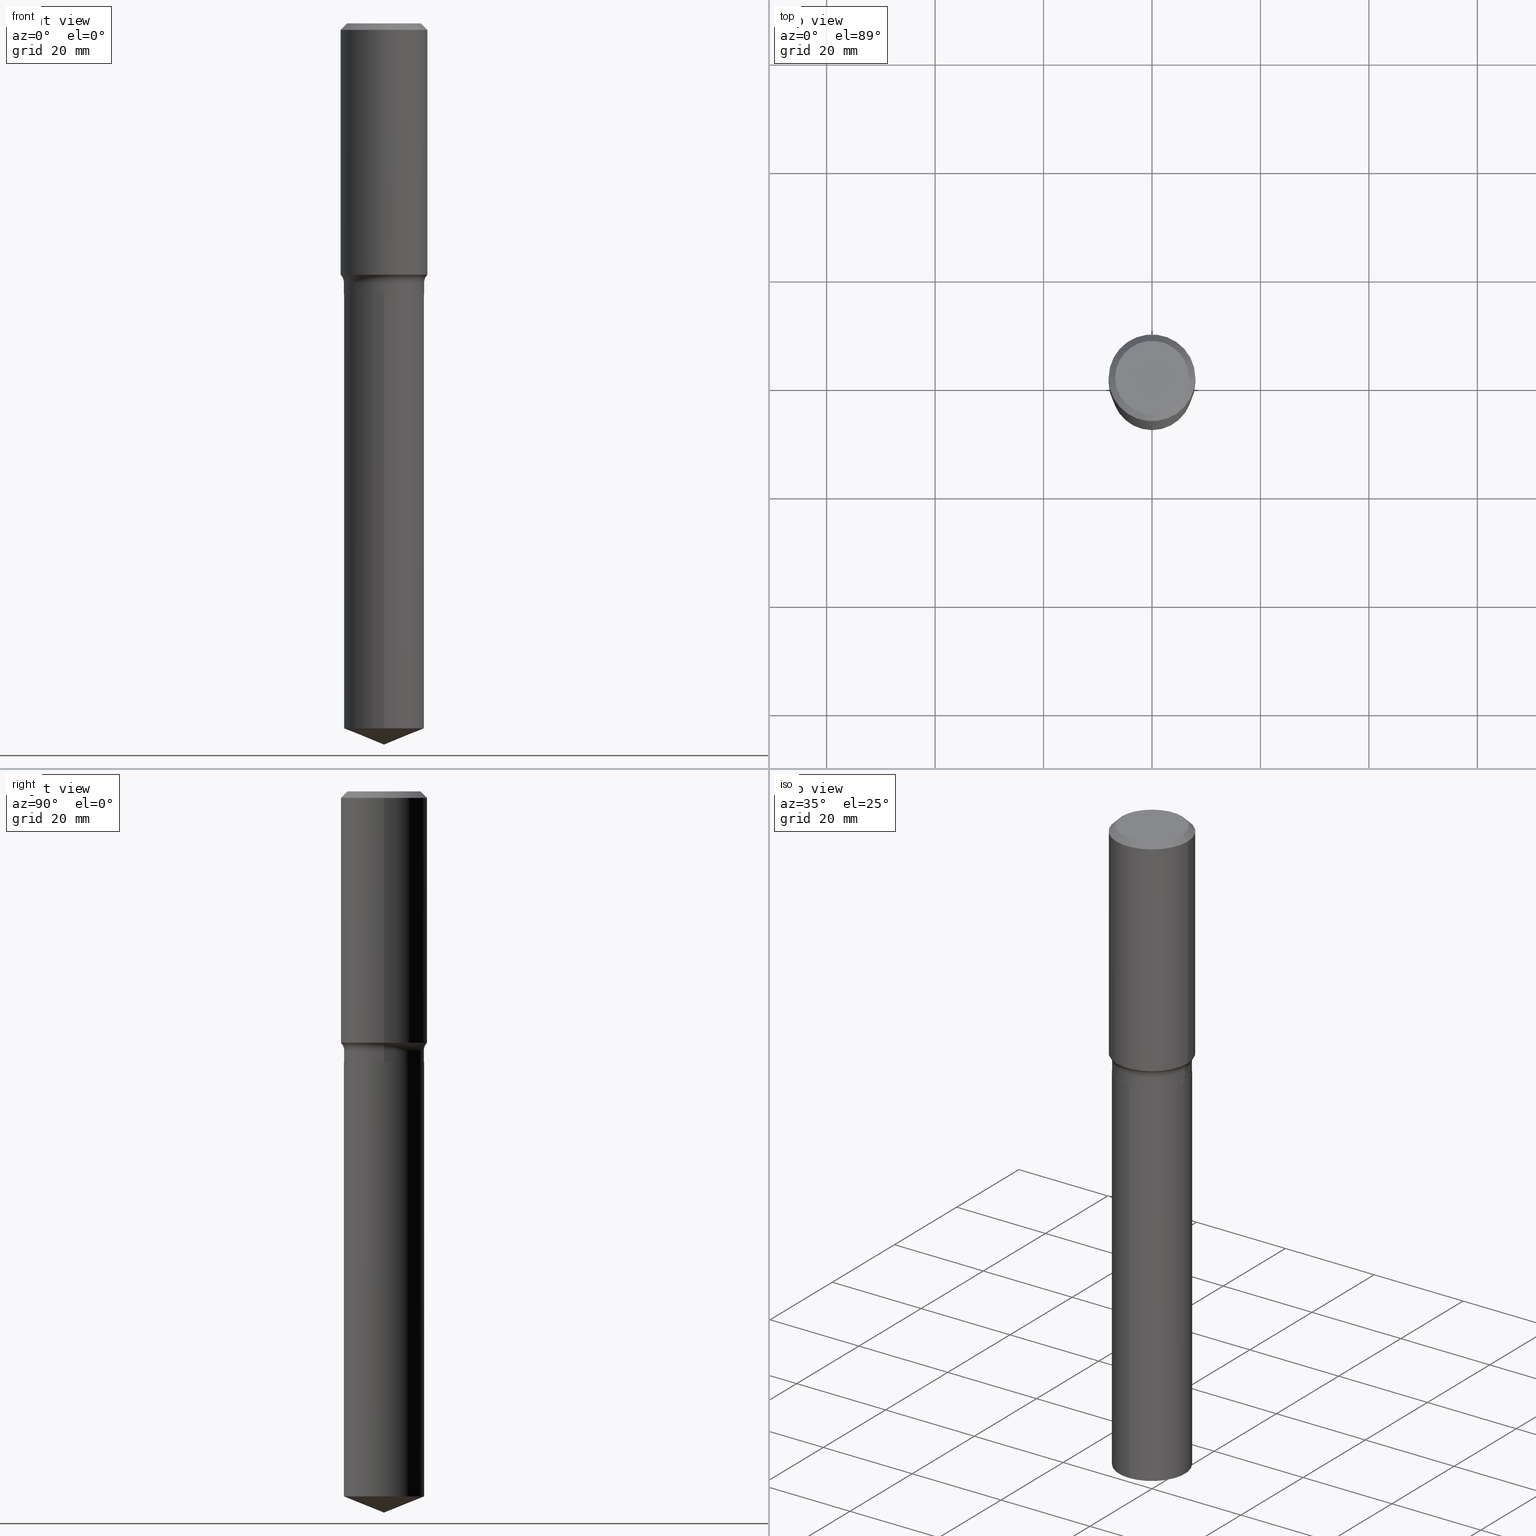
[diagram: canonical four-view strip — front | top / right | iso, engineering-drawing reading convention]
A machine part, canonical four-view strip (front | top / right | iso — engineering-drawing reading convention). The complete STEP part file that produces these views, byte-faithful:
ISO-10303-21;
HEADER;
FILE_DESCRIPTION (( 'STEP AP203' ),
    '1' );
FILE_NAME ('69321.STEP',
    '2024-04-19T17:50:27',
    ( '' ),
    ( '' ),
    'SwSTEP 2.0',
    'SolidWorks 2023',
    '' );
FILE_SCHEMA (( 'CONFIG_CONTROL_DESIGN' ));
ENDSEC;

DATA;
#1 = TOROIDAL_SURFACE ( 'NONE', #73, 0.3693499999999999006, 0.07799999999999995826 ) ;
#2 = CALENDAR_DATE ( 2024, 19, 4 ) ;
#3 = CYLINDRICAL_SURFACE ( 'NONE', #227, 0.2913499999999999979 ) ;
#4 = EDGE_LOOP ( 'NONE', ( #96, #465, #317 ) ) ;
#5 = DIRECTION ( 'NONE',  ( 1.000000000000000000, -6.982962677686267499E-15, 0.000000000000000000 ) ) ;
#6 = CC_DESIGN_PERSON_AND_ORGANIZATION_ASSIGNMENT ( #38, #190, ( #103 ) ) ;
#7 = CARTESIAN_POINT ( 'NONE',  ( 4.813416251214202584E-29, -6.872282719244960739E-15, -1.968299999999999272 ) ) ;
#8 = DESIGN_CONTEXT ( 'detailed design', #474, 'design' ) ;
#9 = DIRECTION ( 'NONE',  ( 1.000000000000000000, -6.982962677686267499E-15, 0.000000000000000000 ) ) ;
#10 = CARTESIAN_POINT ( 'NONE',  ( 2.070166260637176911E-15, 0.2913499999999821788, -5.118286959102927192 ) ) ;
#11 = AXIS2_PLACEMENT_3D ( 'NONE', #36, #184, #350 ) ;
#12 = PRODUCT_DEFINITION ( 'UNKNOWN', '', #103, #8 ) ;
#13 = DIRECTION ( 'NONE',  ( 1.000000000000000000, -6.982962677686266711E-15, 0.000000000000000000 ) ) ;
#14 = ORIENTED_EDGE ( 'NONE', *, *, #24, .T. ) ;
#15 = CALENDAR_DATE ( 2024, 19, 4 ) ;
#16 = FACE_OUTER_BOUND ( 'NONE', #199, .T. ) ;
#17 = ORIENTED_EDGE ( 'NONE', *, *, #173, .F. ) ;
#18 = AXIS2_PLACEMENT_3D ( 'NONE', #274, #438, #236 ) ;
#19 = ADVANCED_FACE ( 'NONE', ( #276 ), #59, .T. ) ;
#20 = DIRECTION ( 'NONE',  ( -2.445468806185136877E-29, 3.491481338843145188E-15, 1.000000000000000000 ) ) ;
#21 = EDGE_LOOP ( 'NONE', ( #235, #372, #207, #237 ) ) ;
#22 = DIRECTION ( 'NONE',  ( -6.982962677686267499E-15, -1.000000000000000000, 3.750606478344620614E-15 ) ) ;
#23 = AXIS2_PLACEMENT_3D ( 'NONE', #472, #362, #9 ) ;
#24 = EDGE_CURVE ( 'NONE', #439, #170, #482, .T. ) ;
#25 = APPROVAL_DATE_TIME ( #408, #128 ) ;
#26 = CARTESIAN_POINT ( 'NONE',  ( 0.000000000000000000, 0.000000000000000000, 0.000000000000000000 ) ) ;
#27 = SHAPE_DEFINITION_REPRESENTATION ( #436, #307 ) ;
#28 = DIRECTION ( 'NONE',  ( 1.000000000000000000, -6.982962677686265922E-15, 4.876176775795935232E-29 ) ) ;
#29 = CARTESIAN_POINT ( 'NONE',  ( -2.034486176143845503E-15, -0.2913500000000068257, -1.968299999999998162 ) ) ;
#30 = ADVANCED_FACE ( 'NONE', ( #449 ), #132, .F. ) ;
#31 = ORIENTED_EDGE ( 'NONE', *, *, #452, .T. ) ;
#32 = DATE_AND_TIME ( #2, #42 ) ;
#33 = CARTESIAN_POINT ( 'NONE',  ( 4.462250649209089674E-29, -6.370911308109631096E-15, -1.824701520593131843 ) ) ;
#34 = DIRECTION ( 'NONE',  ( -0.7071067811865453523, 2.468850131082234184E-15, -0.7071067811865496822 ) ) ;
#35 = DIRECTION ( 'NONE',  ( 1.000000000000000000, -6.982962677686266711E-15, 0.000000000000000000 ) ) ;
#36 = CARTESIAN_POINT ( 'NONE',  ( -1.001697619218022568E-46, 1.430158722866391086E-32, 4.096137381448112218E-18 ) ) ;
#37 = ADVANCED_FACE ( 'NONE', ( #16 ), #392, .T. ) ;
#38 = PERSON_AND_ORGANIZATION ( #321, #114 ) ;
#39 = AXIS2_PLACEMENT_3D ( 'NONE', #45, #195, #363 ) ;
#40 = CIRCLE ( 'NONE', #345, 0.3149500000000000077 ) ;
#41 = DIRECTION ( 'NONE',  ( -2.438088387897960049E-29, 3.491481338843145188E-15, 1.000000000000000000 ) ) ;
#42 = LOCAL_TIME ( 13, 50, 27.00000000000000000, #343 ) ;
#43 = FACE_OUTER_BOUND ( 'NONE', #158, .T. ) ;
#44 = ORIENTED_EDGE ( 'NONE', *, *, #414, .F. ) ;
#45 = CARTESIAN_POINT ( 'NONE',  ( -5.008488096090112840E-47, 7.150793614331955432E-33, 2.048068690724056109E-18 ) ) ;
#46 = LINE ( 'NONE', #196, #91 ) ;
#47 = PERSON_AND_ORGANIZATION ( #321, #114 ) ;
#48 = FACE_OUTER_BOUND ( 'NONE', #61, .T. ) ;
#49 = AXIS2_PLACEMENT_3D ( 'NONE', #251, #386, #137 ) ;
#50 = AXIS2_PLACEMENT_3D ( 'NONE', #148, #64, #127 ) ;
#51 = EDGE_CURVE ( 'NONE', #275, #142, #349, .T. ) ;
#52 = CARTESIAN_POINT ( 'NONE',  ( 1.155300600762020273E-30, -1.649463071502983032E-16, -0.04724250000000029120 ) ) ;
#53 = COORDINATED_UNIVERSAL_TIME_OFFSET ( 5, 0, .BEHIND. ) ;
#54 = DIRECTION ( 'NONE',  ( 6.982962677686265922E-15, 1.000000000000000000, -3.491670036889256580E-15 ) ) ;
#55 = PERSON_AND_ORGANIZATION_ROLE ( 'classification_officer' ) ;
#56 = ORIENTED_EDGE ( 'NONE', *, *, #229, .F. ) ;
#57 = VERTEX_POINT ( 'NONE', #341 ) ;
#58 = ORIENTED_EDGE ( 'NONE', *, *, #374, .F. ) ;
#59 = CONICAL_SURFACE ( 'NONE', #312, 0.3149500000000000077, 0.7853981633974452814 ) ;
#60 = AXIS2_PLACEMENT_3D ( 'NONE', #99, #256, #418 ) ;
#61 = EDGE_LOOP ( 'NONE', ( #404, #138, #478, #437 ) ) ;
#62 = CC_DESIGN_PERSON_AND_ORGANIZATION_ASSIGNMENT ( #422, #255, ( #12 ) ) ;
#63 = DIRECTION ( 'NONE',  ( 1.000000000000000000, -6.982962677686267499E-15, 0.000000000000000000 ) ) ;
#64 = DIRECTION ( 'NONE',  ( -2.445337039043801904E-29, 3.491670036889256580E-15, 1.000000000000000000 ) ) ;
#65 = CARTESIAN_POINT ( 'NONE',  ( 0.3149500000000001743, -2.199284095337290660E-15, 1.535751875536930690E-29 ) ) ;
#66 = AXIS2_PLACEMENT_3D ( 'NONE', #460, #485, #253 ) ;
#67 = APPROVAL_PERSON_ORGANIZATION ( #107, #311, #78 ) ;
#68 = CARTESIAN_POINT ( 'NONE',  ( -0.2908499999999999974, -4.805669172286709761E-15, -1.968299999999999272 ) ) ;
#69 = DIRECTION ( 'NONE',  ( 1.000000000000000000, -6.982962677686267499E-15, 4.876236838442819371E-29 ) ) ;
#70 = ORIENTED_EDGE ( 'NONE', *, *, #229, .T. ) ;
#71 = CALENDAR_DATE ( 2024, 19, 4 ) ;
#72 = ADVANCED_FACE ( 'NONE', ( #259 ), #492, .T. ) ;
#73 = AXIS2_PLACEMENT_3D ( 'NONE', #469, #123, #116 ) ;
#74 = APPROVAL_DATE_TIME ( #352, #412 ) ;
#75 = LOCAL_TIME ( 13, 50, 27.00000000000000000, #186 ) ;
#76 =( CONVERSION_BASED_UNIT ( 'INCH', #98 ) LENGTH_UNIT ( ) NAMED_UNIT ( #334 ) );
#77 = ORIENTED_EDGE ( 'NONE', *, *, #247, .F. ) ;
#78 = APPROVAL_ROLE ( '' ) ;
#79 = EDGE_CURVE ( 'NONE', #356, #371, #214, .T. ) ;
#80 = LINE ( 'NONE', #357, #205 ) ;
#81 = DIRECTION ( 'NONE',  ( 1.000000000000000000, -6.982962677686265922E-15, 4.876176775795935793E-29 ) ) ;
#82 = CARTESIAN_POINT ( 'NONE',  ( 0.2913499999999999979, -8.600565981972311592E-15, -1.880599999999999605 ) ) ;
#83 = CARTESIAN_POINT ( 'NONE',  ( 1.155300600762020273E-30, -1.649463071502983032E-16, -0.04724250000000029120 ) ) ;
#84 = DIRECTION ( 'NONE',  ( -2.445337039043801904E-29, 3.491670036889256580E-15, 1.000000000000000000 ) ) ;
#85 = CARTESIAN_POINT ( 'NONE',  ( -0.2913499999999999979, -4.648142131564926726E-15, -1.967799999999999327 ) ) ;
#86 = APPROVAL_DATE_TIME ( #157, #311 ) ;
#87 = ORIENTED_EDGE ( 'NONE', *, *, #325, .F. ) ;
#88 = ADVANCED_FACE ( 'NONE', ( #101 ), #3, .T. ) ;
#89 = ORIENTED_EDGE ( 'NONE', *, *, #145, .T. ) ;
#90 = AXIS2_PLACEMENT_3D ( 'NONE', #379, #338, #295 ) ;
#91 = VECTOR ( 'NONE', #84, 39.37007874015748143 ) ;
#92 = ADVANCED_FACE ( 'NONE', ( #176 ), #100, .T. ) ;
#93 = APPROVAL_ROLE ( '' ) ;
#94 = EDGE_LOOP ( 'NONE', ( #396, #407, #416, #370 ) ) ;
#95 = DATE_AND_TIME ( #240, #290 ) ;
#96 = ORIENTED_EDGE ( 'NONE', *, *, #488, .F. ) ;
#97 = CARTESIAN_POINT ( 'NONE',  ( 0.2908499999999999974, -8.903277414050010566E-15, -1.968299999999999272 ) ) ;
#98 = LENGTH_MEASURE_WITH_UNIT ( LENGTH_MEASURE( 0.02539999999999999897 ), #110 );
#99 = CARTESIAN_POINT ( 'NONE',  ( 1.251619603481354331E-28, -1.787099780093655528E-14, -5.118286959102926303 ) ) ;
#100 = CONICAL_SURFACE ( 'NONE', #330, 97.44436430772762492, 1.186823891356142191 ) ;
#101 = FACE_OUTER_BOUND ( 'NONE', #277, .T. ) ;
#102 = CIRCLE ( 'NONE', #296, 0.2908499999999999974 ) ;
#103 = PRODUCT_DEFINITION_FORMATION_WITH_SPECIFIED_SOURCE ( 'ANY', '', #233, .NOT_KNOWN. ) ;
#104 = LINE ( 'NONE', #150, #219 ) ;
#105 = CARTESIAN_POINT ( 'NONE',  ( -1.001697619218022568E-46, 1.430158722866391086E-32, 4.096137381448112218E-18 ) ) ;
#106 = EDGE_CURVE ( 'NONE', #209, #446, #462, .T. ) ;
#107 = PERSON_AND_ORGANIZATION ( #321, #114 ) ;
#108 = APPLICATION_CONTEXT ( 'configuration controlled 3d designs of mechanical parts and assemblies' ) ;
#109 = DIRECTION ( 'NONE',  ( 1.000000000000000000, -6.982962677686266711E-15, 0.000000000000000000 ) ) ;
#110 =( LENGTH_UNIT ( ) NAMED_UNIT ( * ) SI_UNIT ( $, .METRE. ) );
#111 = CARTESIAN_POINT ( 'NONE',  ( 4.812193516811110904E-29, -6.870536978575539236E-15, -1.967799999999999327 ) ) ;
#112 = VECTOR ( 'NONE', #333, 39.37007874015748143 ) ;
#113 = AXIS2_PLACEMENT_3D ( 'NONE', #477, #139, #252 ) ;
#114 = ORGANIZATION ( 'UNSPECIFIED', 'UNSPECIFIED', '' ) ;
#115 = DIRECTION ( 'NONE',  ( -2.445468806185136597E-29, 3.491481338843145583E-15, 1.000000000000000000 ) ) ;
#116 = DIRECTION ( 'NONE',  ( 1.000000000000000000, -6.982962677686266711E-15, 4.883557194083112340E-29 ) ) ;
#117 = CARTESIAN_POINT ( 'NONE',  ( 4.813416251214202584E-29, -6.872282719244960739E-15, -1.968299999999999272 ) ) ;
#118 = AXIS2_PLACEMENT_3D ( 'NONE', #146, #182, #28 ) ;
#119 = CARTESIAN_POINT ( 'NONE',  ( -0.3693499999999999006, -3.941690211298489033E-15, -1.880599999999999605 ) ) ;
#120 = VECTOR ( 'NONE', #377, 39.37007874015748854 ) ;
#121 = EDGE_CURVE ( 'NONE', #269, #57, #215, .T. ) ;
#122 = EDGE_LOOP ( 'NONE', ( #376, #402, #70, #14 ) ) ;
#123 = DIRECTION ( 'NONE',  ( -2.445468806185136597E-29, 3.491481338843145583E-15, 1.000000000000000000 ) ) ;
#124 = DIRECTION ( 'NONE',  ( -2.445337039043801904E-29, 3.491670036889256580E-15, 1.000000000000000000 ) ) ;
#125 = ORIENTED_EDGE ( 'NONE', *, *, #24, .F. ) ;
#126 = ORIENTED_EDGE ( 'NONE', *, *, #285, .F. ) ;
#127 = DIRECTION ( 'NONE',  ( -6.982962677686266711E-15, -1.000000000000000000, 3.498761904101856351E-15 ) ) ;
#128 = APPROVAL ( #453, 'UNSPECIFIED' ) ;
#129 = CIRCLE ( 'NONE', #323, 0.2913499999999999979 ) ;
#130 = ADVANCED_FACE ( 'NONE', ( #291 ), #381, .T. ) ;
#131 = APPROVAL_PERSON_ORGANIZATION ( #335, #412, #218 ) ;
#132 = PLANE ( 'NONE',  #365 ) ;
#133 = CARTESIAN_POINT ( 'NONE',  ( 4.813416251214202584E-29, -6.872282719244960739E-15, -1.968299999999999272 ) ) ;
#134 = DIRECTION ( 'NONE',  ( -1.000000000000000000, 6.982962677686266711E-15, 0.000000000000000000 ) ) ;
#135 = APPLICATION_PROTOCOL_DEFINITION ( 'international standard', 'config_control_design', 1994, #108 ) ;
#136 = CIRCLE ( 'NONE', #151, 0.07799999999999995826 ) ;
#137 = DIRECTION ( 'NONE',  ( -6.982962677686267499E-15, -1.000000000000000000, 3.750606478344620614E-15 ) ) ;
#138 = ORIENTED_EDGE ( 'NONE', *, *, #178, .T. ) ;
#139 = DIRECTION ( 'NONE',  ( 0.000000000000000000, 0.000000000000000000, 1.000000000000000000 ) ) ;
#140 = CARTESIAN_POINT ( 'NONE',  ( 1.280378473643334730E-28, -1.828238431315214963E-14, -5.235999999999999766 ) ) ;
#141 = CARTESIAN_POINT ( 'NONE',  ( -8.346906767968038649E-28, 1.191853113881906384E-13, 34.13407874015748433 ) ) ;
#142 = VERTEX_POINT ( 'NONE', #177 ) ;
#143 = DIRECTION ( 'NONE',  ( -2.445468806185136597E-29, 3.491481338843145583E-15, 1.000000000000000000 ) ) ;
#144 = ORIENTED_EDGE ( 'NONE', *, *, #51, .F. ) ;
#145 = EDGE_CURVE ( 'NONE', #170, #439, #167, .T. ) ;
#146 = CARTESIAN_POINT ( 'NONE',  ( 0.000000000000000000, 0.000000000000000000, 0.000000000000000000 ) ) ;
#147 = VECTOR ( 'NONE', #238, 39.37007874015748143 ) ;
#148 = CARTESIAN_POINT ( 'NONE',  ( -8.346906767968038649E-28, 1.191853113881906384E-13, 34.13407874015748433 ) ) ;
#149 = CARTESIAN_POINT ( 'NONE',  ( -0.3149500000000001743, 2.237854346276436774E-15, -1.549218606675783237E-29 ) ) ;
#150 = CARTESIAN_POINT ( 'NONE',  ( 0.2913499999999999979, -2.034486176143893623E-15, 1.420674103628145772E-29 ) ) ;
#151 = AXIS2_PLACEMENT_3D ( 'NONE', #119, #434, #231 ) ;
#152 = DIRECTION ( 'NONE',  ( 1.000000000000000000, -6.982962677686266711E-15, 4.883557194083112340E-29 ) ) ;
#153 = ORIENTED_EDGE ( 'NONE', *, *, #385, .T. ) ;
#154 = FACE_OUTER_BOUND ( 'NONE', #122, .T. ) ;
#155 = LINE ( 'NONE', #432, #411 ) ;
#156 = ADVANCED_FACE ( 'NONE', ( #383 ), #486, .T. ) ;
#157 = DATE_AND_TIME ( #71, #75 ) ;
#158 = EDGE_LOOP ( 'NONE', ( #378, #246 ) ) ;
#159 = DIRECTION ( 'NONE',  ( -2.445468806185136877E-29, 3.491481338843145188E-15, 1.000000000000000000 ) ) ;
#160 = AXIS2_PLACEMENT_3D ( 'NONE', #224, #308, #152 ) ;
#161 = CARTESIAN_POINT ( 'NONE',  ( 4.813416251214202584E-29, -6.872282719244960739E-15, -1.968299999999999272 ) ) ;
#162 = ORIENTED_EDGE ( 'NONE', *, *, #374, .T. ) ;
#163 = VERTEX_POINT ( 'NONE', #29 ) ;
#164 = VERTEX_POINT ( 'NONE', #456 ) ;
#165 = EDGE_CURVE ( 'NONE', #410, #301, #420, .T. ) ;
#166 = ORIENTED_EDGE ( 'NONE', *, *, #51, .T. ) ;
#167 = CIRCLE ( 'NONE', #344, 0.2913499999999999979 ) ;
#168 = CIRCLE ( 'NONE', #458, 0.07799999999999995826 ) ;
#169 = CARTESIAN_POINT ( 'NONE',  ( 1.280430799947604683E-28, -1.828164148442382460E-14, -5.235999999999999766 ) ) ;
#170 = VERTEX_POINT ( 'NONE', #459 ) ;
#171 = CC_DESIGN_PERSON_AND_ORGANIZATION_ASSIGNMENT ( #339, #490, ( #233 ) ) ;
#172 = ORIENTED_EDGE ( 'NONE', *, *, #405, .F. ) ;
#173 = EDGE_CURVE ( 'NONE', #327, #164, #322, .T. ) ;
#174 = ORIENTED_EDGE ( 'NONE', *, *, #267, .T. ) ;
#175 = CIRCLE ( 'NONE', #11, 0.2677074999999999871 ) ;
#176 = FACE_OUTER_BOUND ( 'NONE', #471, .T. ) ;
#177 = CARTESIAN_POINT ( 'NONE',  ( 0.3149500000000000077, -2.364230402487588149E-15, -0.04724250000000029120 ) ) ;
#178 = EDGE_CURVE ( 'NONE', #410, #356, #366, .T. ) ;
#179 = DIRECTION ( 'NONE',  ( -6.474490251793172318E-15, -0.9271838545667853149, 0.3746065934159170108 ) ) ;
#180 = CARTESIAN_POINT ( 'NONE',  ( 4.813416251214202584E-29, -6.872282719244960739E-15, -1.968299999999999272 ) ) ;
#181 = COORDINATED_UNIVERSAL_TIME_OFFSET ( 5, 0, .BEHIND. ) ;
#182 = DIRECTION ( 'NONE',  ( -2.445468806185136597E-29, 3.491481338843145583E-15, 1.000000000000000000 ) ) ;
#183 = CONICAL_SURFACE ( 'NONE', #50, 97.44436430772762492, 1.186823891356142191 ) ;
#184 = DIRECTION ( 'NONE',  ( -2.445468806185136597E-29, 3.491481338843145583E-15, 1.000000000000000000 ) ) ;
#185 = DIRECTION ( 'NONE',  ( -2.445337039043801904E-29, 3.491670036889256580E-15, 1.000000000000000000 ) ) ;
#186 = COORDINATED_UNIVERSAL_TIME_OFFSET ( 5, 0, .BEHIND. ) ;
#187 = ORIENTED_EDGE ( 'NONE', *, *, #300, .F. ) ;
#188 = DIRECTION ( 'NONE',  ( 1.000000000000000000, -6.982962677686268288E-15, 0.000000000000000000 ) ) ;
#189 = CIRCLE ( 'NONE', #23, 0.2913499999999999979 ) ;
#190 = PERSON_AND_ORGANIZATION_ROLE ( 'creator' ) ;
#191 = DIRECTION ( 'NONE',  ( -2.445468806185136597E-29, 3.491481338843145583E-15, 1.000000000000000000 ) ) ;
#192 = CARTESIAN_POINT ( 'NONE',  ( -0.3149500000000000077, 2.034337788186991592E-15, -0.04724250000000029120 ) ) ;
#193 = EDGE_CURVE ( 'NONE', #301, #371, #483, .T. ) ;
#194 = DIRECTION ( 'NONE',  ( 1.000000000000000000, -6.982962677686261977E-15, 0.000000000000000000 ) ) ;
#195 = DIRECTION ( 'NONE',  ( 2.438088387897960049E-29, -3.491481338843145188E-15, -1.000000000000000000 ) ) ;
#196 = CARTESIAN_POINT ( 'NONE',  ( -2.034486176143845897E-15, -0.2913500000000068813, -1.968299999999998162 ) ) ;
#197 = CARTESIAN_POINT ( 'NONE',  ( 4.813416251214202584E-29, -6.872282719244960739E-15, -1.968299999999999272 ) ) ;
#198 = COORDINATED_UNIVERSAL_TIME_OFFSET ( 5, 0, .BEHIND. ) ;
#199 = EDGE_LOOP ( 'NONE', ( #448, #202, #77, #409 ) ) ;
#200 = CARTESIAN_POINT ( 'NONE',  ( 4.813416251214202584E-29, -6.872282719244960739E-15, -1.968299999999999272 ) ) ;
#201 = ORIENTED_EDGE ( 'NONE', *, *, #254, .T. ) ;
#202 = ORIENTED_EDGE ( 'NONE', *, *, #165, .T. ) ;
#203 = CARTESIAN_POINT ( 'NONE',  ( 1.280378473643334730E-28, -1.828238431315214647E-14, -5.235999999999999766 ) ) ;
#204 = VECTOR ( 'NONE', #20, 39.37007874015748143 ) ;
#205 = VECTOR ( 'NONE', #159, 39.37007874015748143 ) ;
#206 = LINE ( 'NONE', #169, #120 ) ;
#207 = ORIENTED_EDGE ( 'NONE', *, *, #364, .T. ) ;
#208 = EDGE_CURVE ( 'NONE', #209, #163, #46, .T. ) ;
#209 = VERTEX_POINT ( 'NONE', #435 ) ;
#210 = DIRECTION ( 'NONE',  ( -6.982962677686266711E-15, -1.000000000000000000, 3.498761904101856351E-15 ) ) ;
#211 = AXIS2_PLACEMENT_3D ( 'NONE', #400, #388, #464 ) ;
#212 = DIRECTION ( 'NONE',  ( -2.445337039043801904E-29, 3.491670036889256580E-15, 1.000000000000000000 ) ) ;
#213 = ADVANCED_FACE ( 'NONE', ( #154 ), #475, .F. ) ;
#214 = LINE ( 'NONE', #97, #428 ) ;
#215 = LINE ( 'NONE', #149, #112 ) ;
#216 = CC_DESIGN_PERSON_AND_ORGANIZATION_ASSIGNMENT ( #451, #55, ( #360 ) ) ;
#217 = ORIENTED_EDGE ( 'NONE', *, *, #285, .T. ) ;
#218 = APPROVAL_ROLE ( '' ) ;
#219 = VECTOR ( 'NONE', #398, 39.37007874015748143 ) ;
#220 = ORIENTED_EDGE ( 'NONE', *, *, #106, .F. ) ;
#221 = EDGE_CURVE ( 'NONE', #269, #170, #136, .T. ) ;
#222 = CYLINDRICAL_SURFACE ( 'NONE', #211, 0.2913499999999999979 ) ;
#223 = ORIENTED_EDGE ( 'NONE', *, *, #364, .F. ) ;
#224 = CARTESIAN_POINT ( 'NONE',  ( 4.598948636911766796E-29, -6.566079805828417969E-15, -1.880599999999999605 ) ) ;
#225 = CARTESIAN_POINT ( 'NONE',  ( 4.813416251214202584E-29, -6.872282719244960739E-15, -1.968299999999999272 ) ) ;
#226 = DIRECTION ( 'NONE',  ( -1.000000000000000000, 6.982962677686266711E-15, 0.000000000000000000 ) ) ;
#227 = AXIS2_PLACEMENT_3D ( 'NONE', #180, #489, #22 ) ;
#228 = CIRCLE ( 'NONE', #450, 0.3149500000000002298 ) ;
#229 = EDGE_CURVE ( 'NONE', #275, #439, #168, .T. ) ;
#230 = MANIFOLD_SOLID_BREP ( 'Body-Move/Copy2[2]', #281 ) ;
#231 = DIRECTION ( 'NONE',  ( -1.000000000000000000, 7.105427357601001859E-15, 0.000000000000000000 ) ) ;
#232 = LINE ( 'NONE', #319, #147 ) ;
#234 = LINE ( 'NONE', #192, #393 ) ;
#233 = PRODUCT ( '69321', '69321', '', ( #454 ) ) ;
#235 = ORIENTED_EDGE ( 'NONE', *, *, #254, .F. ) ;
#236 = DIRECTION ( 'NONE',  ( 1.000000000000000000, -6.982962677686266711E-15, 0.000000000000000000 ) ) ;
#237 = ORIENTED_EDGE ( 'NONE', *, *, #145, .F. ) ;
#238 = DIRECTION ( 'NONE',  ( 0.7071067811865453523, -7.319954787623248157E-15, -0.7071067811865496822 ) ) ;
#239 = ORIENTED_EDGE ( 'NONE', *, *, #480, .F. ) ;
#240 = CALENDAR_DATE ( 2024, 19, 4 ) ;
#241 = CONICAL_SURFACE ( 'NONE', #359, 0.3149500000000000077, 0.7853981633974452814 ) ;
#242 = ORIENTED_EDGE ( 'NONE', *, *, #208, .T. ) ;
#243 = DIRECTION ( 'NONE',  ( 2.445337039043801624E-29, -3.491670036889256580E-15, -1.000000000000000000 ) ) ;
#244 = DIRECTION ( 'NONE',  ( 1.000000000000000000, -6.982962677686268288E-15, 0.000000000000000000 ) ) ;
#245 = ORIENTED_EDGE ( 'NONE', *, *, #178, .F. ) ;
#246 = ORIENTED_EDGE ( 'NONE', *, *, #325, .T. ) ;
#247 = EDGE_CURVE ( 'NONE', #371, #301, #189, .T. ) ;
#248 = AXIS2_PLACEMENT_3D ( 'NONE', #161, #185, #461 ) ;
#249 = ORIENTED_EDGE ( 'NONE', *, *, #267, .F. ) ;
#250 = DATE_TIME_ROLE ( 'classification_date' ) ;
#251 = CARTESIAN_POINT ( 'NONE',  ( 1.251619603481354331E-28, -1.787099780093655528E-14, -5.118286959102926303 ) ) ;
#252 = DIRECTION ( 'NONE',  ( 1.000000000000000000, 0.000000000000000000, 0.000000000000000000 ) ) ;
#253 = DIRECTION ( 'NONE',  ( 1.000000000000000000, -6.982962677686265922E-15, 4.876176775795935232E-29 ) ) ;
#254 = EDGE_CURVE ( 'NONE', #301, #170, #80, .T. ) ;
#255 = PERSON_AND_ORGANIZATION_ROLE ( 'creator' ) ;
#256 = DIRECTION ( 'NONE',  ( -2.445337039043801904E-29, 3.491670036889256580E-15, 1.000000000000000000 ) ) ;
#257 = AXIS2_PLACEMENT_3D ( 'NONE', #111, #353, #5 ) ;
#258 = CC_DESIGN_APPROVAL ( #412, ( #12 ) ) ;
#259 = FACE_OUTER_BOUND ( 'NONE', #318, .T. ) ;
#260 = ORIENTED_EDGE ( 'NONE', *, *, #455, .F. ) ;
#261 = APPROVAL_STATUS ( 'not_yet_approved' ) ;
#262 = DIRECTION ( 'NONE',  ( -2.445468806185136597E-29, 3.491481338843145583E-15, 1.000000000000000000 ) ) ;
#263 = ADVANCED_FACE ( 'NONE', ( #314 ), #1, .F. ) ;
#264 = CIRCLE ( 'NONE', #467, 0.3149500000000002298 ) ;
#265 = FACE_OUTER_BOUND ( 'NONE', #21, .T. ) ;
#266 = DIRECTION ( 'NONE',  ( 1.000000000000000000, -6.982962677686266711E-15, 0.000000000000000000 ) ) ;
#267 = EDGE_CURVE ( 'NONE', #142, #57, #463, .T. ) ;
#268 = CARTESIAN_POINT ( 'NONE',  ( 1.155300600762020273E-30, -1.649463071502983032E-16, -0.04724250000000029120 ) ) ;
#269 = VERTEX_POINT ( 'NONE', #401 ) ;
#270 = ADVANCED_FACE ( 'NONE', ( #48 ), #429, .T. ) ;
#271 = EDGE_LOOP ( 'NONE', ( #382, #201, #125, #223 ) ) ;
#272 = CIRCLE ( 'NONE', #60, 0.2913499999999999979 ) ;
#273 = ORIENTED_EDGE ( 'NONE', *, *, #421, .F. ) ;
#274 = CARTESIAN_POINT ( 'NONE',  ( 1.155300600762020273E-30, -1.649463071502983032E-16, -0.04724250000000029120 ) ) ;
#275 = VERTEX_POINT ( 'NONE', #326 ) ;
#276 = FACE_OUTER_BOUND ( 'NONE', #442, .T. ) ;
#277 = EDGE_LOOP ( 'NONE', ( #44, #441, #242, #273 ) ) ;
#278 = CARTESIAN_POINT ( 'NONE',  ( 4.462250649209089674E-29, -6.370911308109631096E-15, -1.824701520593131843 ) ) ;
#279 = EDGE_LOOP ( 'NONE', ( #187, #245 ) ) ;
#280 = ORIENTED_EDGE ( 'NONE', *, *, #488, .T. ) ;
#281 = CLOSED_SHELL ( 'NONE', ( #37, #19, #130, #263, #347, #306, #213, #72, #316, #443, #399, #270 ) ) ;
#282 = AXIS2_PLACEMENT_3D ( 'NONE', #197, #368, #13 ) ;
#283 = EDGE_LOOP ( 'NONE', ( #31, #473 ) ) ;
#284 = DIRECTION ( 'NONE',  ( -2.445468806185136597E-29, 3.491481338843145583E-15, 1.000000000000000000 ) ) ;
#285 = EDGE_CURVE ( 'NONE', #269, #275, #228, .T. ) ;
#286 = DIRECTION ( 'NONE',  ( 1.000000000000000000, -6.982962677686267499E-15, 0.000000000000000000 ) ) ;
#287 = SECURITY_CLASSIFICATION_LEVEL ( 'unclassified' ) ;
#288 = AXIS2_PLACEMENT_3D ( 'NONE', #444, #440, #286 ) ;
#289 = EDGE_LOOP ( 'NONE', ( #126, #351, #89, #56 ) ) ;
#290 = LOCAL_TIME ( 13, 50, 27.00000000000000000, #53 ) ;
#291 = FACE_OUTER_BOUND ( 'NONE', #413, .T. ) ;
#292 = FACE_OUTER_BOUND ( 'NONE', #4, .T. ) ;
#293 = DIRECTION ( 'NONE',  ( 1.000000000000000000, -6.982962677686265922E-15, 4.876176775795935232E-29 ) ) ;
#294 = VERTEX_POINT ( 'NONE', #203 ) ;
#295 = DIRECTION ( 'NONE',  ( -6.982962677686267499E-15, -1.000000000000000000, 3.750606478344620614E-15 ) ) ;
#296 = AXIS2_PLACEMENT_3D ( 'NONE', #373, #191, #313 ) ;
#297 = CC_DESIGN_APPROVAL ( #128, ( #360 ) ) ;
#298 = DIRECTION ( 'NONE',  ( -0.7071067811866199593, 7.493145998870616062E-15, 0.7071067811864750752 ) ) ;
#299 = DATE_TIME_ROLE ( 'creation_date' ) ;
#300 = EDGE_CURVE ( 'NONE', #356, #410, #102, .T. ) ;
#301 = VERTEX_POINT ( 'NONE', #85 ) ;
#302 = FACE_OUTER_BOUND ( 'NONE', #279, .T. ) ;
#303 = VECTOR ( 'NONE', #298, 39.37007874015748143 ) ;
#304 = AXIS2_PLACEMENT_3D ( 'NONE', #105, #425, #69 ) ;
#305 = DIRECTION ( 'NONE',  ( -6.982962677686266711E-15, -1.000000000000000000, 3.491481338843145583E-15 ) ) ;
#306 = ADVANCED_FACE ( 'NONE', ( #265 ), #222, .T. ) ;
#307 = ADVANCED_BREP_SHAPE_REPRESENTATION ( '69321', ( #419, #230, #113 ), #331 ) ;
#308 = DIRECTION ( 'NONE',  ( -2.445468806185136597E-29, 3.491481338843145583E-15, 1.000000000000000000 ) ) ;
#309 = DIRECTION ( 'NONE',  ( -6.982962677686265922E-15, -1.000000000000000000, 3.750606478344620614E-15 ) ) ;
#310 = PLANE ( 'NONE',  #39 ) ;
#311 = APPROVAL ( #261, 'UNSPECIFIED' ) ;
#312 = AXIS2_PLACEMENT_3D ( 'NONE', #52, #479, #134 ) ;
#313 = DIRECTION ( 'NONE',  ( 1.000000000000000000, -6.982962677686266711E-15, 0.000000000000000000 ) ) ;
#314 = FACE_OUTER_BOUND ( 'NONE', #289, .T. ) ;
#315 = DIRECTION ( 'NONE',  ( -2.445468806185136597E-29, 3.491481338843145583E-15, 1.000000000000000000 ) ) ;
#316 = ADVANCED_FACE ( 'NONE', ( #468 ), #241, .T. ) ;
#317 = ORIENTED_EDGE ( 'NONE', *, *, #355, .F. ) ;
#318 = EDGE_LOOP ( 'NONE', ( #445, #217, #166, #172 ) ) ;
#319 = CARTESIAN_POINT ( 'NONE',  ( 0.3149500000000000077, -2.325660151548442036E-15, -0.04724250000000029120 ) ) ;
#320 = CLOSED_SHELL ( 'NONE', ( #156, #92, #466, #88, #30 ) ) ;
#321 = PERSON ( 'UNSPECIFIED', 'UNSPECIFIED', 'UNSPECIFIED', ('UNSPECIFIED'), ('UNSPECIFIED'), ('UNSPECIFIED') ) ;
#322 = CIRCLE ( 'NONE', #304, 0.2677074999999999871 ) ;
#323 = AXIS2_PLACEMENT_3D ( 'NONE', #7, #470, #309 ) ;
#324 = LOCAL_TIME ( 13, 50, 27.00000000000000000, #198 ) ;
#325 = EDGE_CURVE ( 'NONE', #164, #327, #175, .T. ) ;
#326 = CARTESIAN_POINT ( 'NONE',  ( 0.3149500000000002853, -8.570195403446922545E-15, -1.824701520593131843 ) ) ;
#327 = VERTEX_POINT ( 'NONE', #340 ) ;
#328 = CC_DESIGN_DATE_AND_TIME_ASSIGNMENT ( #95, #250, ( #360 ) ) ;
#329 = DIRECTION ( 'NONE',  ( 0.7071067811866199593, -2.468850131083015945E-15, 0.7071067811864750752 ) ) ;
#330 = AXIS2_PLACEMENT_3D ( 'NONE', #141, #212, #210 ) ;
#331 =( GEOMETRIC_REPRESENTATION_CONTEXT ( 3 ) GLOBAL_UNCERTAINTY_ASSIGNED_CONTEXT ( ( #395 ) ) GLOBAL_UNIT_ASSIGNED_CONTEXT ( ( #76, #424, #337 ) ) REPRESENTATION_CONTEXT ( 'NONE', 'WORKASPACE' ) );
#332 = CARTESIAN_POINT ( 'NONE',  ( 2.070166260637176911E-15, 0.2913499999999931145, -1.968300000000000383 ) ) ;
#333 = DIRECTION ( 'NONE',  ( -2.445468806185136877E-29, 3.491481338843145188E-15, 1.000000000000000000 ) ) ;
#334 = DIMENSIONAL_EXPONENTS ( 1.000000000000000000, 0.000000000000000000, 0.000000000000000000, 0.000000000000000000, 0.000000000000000000, 0.000000000000000000, 0.000000000000000000 ) ;
#335 = PERSON_AND_ORGANIZATION ( #321, #114 ) ;
#336 = CYLINDRICAL_SURFACE ( 'NONE', #66, 0.2913499999999999979 ) ;
#337 =( NAMED_UNIT ( * ) SI_UNIT ( $, .STERADIAN. ) SOLID_ANGLE_UNIT ( ) );
#338 = DIRECTION ( 'NONE',  ( -2.445337039043801904E-29, 3.491670036889256580E-15, 1.000000000000000000 ) ) ;
#339 = PERSON_AND_ORGANIZATION ( #321, #114 ) ;
#340 = CARTESIAN_POINT ( 'NONE',  ( -0.2677074999999999871, 1.951864634611843833E-15, 4.096137381434750116E-18 ) ) ;
#341 = CARTESIAN_POINT ( 'NONE',  ( -0.3149500000000000077, -1.030074461353527914E-15, -0.04724250000000029120 ) ) ;
#342 = VERTEX_POINT ( 'NONE', #332 ) ;
#343 = COORDINATED_UNIVERSAL_TIME_OFFSET ( 5, 0, .BEHIND. ) ;
#344 = AXIS2_PLACEMENT_3D ( 'NONE', #415, #143, #63 ) ;
#345 = AXIS2_PLACEMENT_3D ( 'NONE', #83, #115, #266 ) ;
#346 = LOCAL_TIME ( 13, 50, 27.00000000000000000, #181 ) ;
#347 = ADVANCED_FACE ( 'NONE', ( #491 ), #336, .T. ) ;
#348 = LINE ( 'NONE', #140, #375 ) ;
#349 = LINE ( 'NONE', #65, #204 ) ;
#350 = DIRECTION ( 'NONE',  ( 1.000000000000000000, -6.982962677686267499E-15, 4.876236838442819371E-29 ) ) ;
#351 = ORIENTED_EDGE ( 'NONE', *, *, #221, .T. ) ;
#352 = DATE_AND_TIME ( #430, #346 ) ;
#353 = DIRECTION ( 'NONE',  ( -2.445468806185136597E-29, 3.491481338843145583E-15, 1.000000000000000000 ) ) ;
#354 = CC_DESIGN_DATE_AND_TIME_ASSIGNMENT ( #32, #299, ( #12 ) ) ;
#355 = EDGE_CURVE ( 'NONE', #446, #209, #272, .T. ) ;
#356 = VERTEX_POINT ( 'NONE', #423 ) ;
#357 = CARTESIAN_POINT ( 'NONE',  ( -0.2913499999999999979, 2.070166260637051876E-15, -1.433131738545766651E-29 ) ) ;
#358 = AXIS2_PLACEMENT_3D ( 'NONE', #133, #284, #109 ) ;
#359 = AXIS2_PLACEMENT_3D ( 'NONE', #268, #431, #226 ) ;
#360 = SECURITY_CLASSIFICATION ( '', '', #287 ) ;
#361 = PLANE ( 'NONE',  #417 ) ;
#362 = DIRECTION ( 'NONE',  ( -2.445468806185136597E-29, 3.491481338843145583E-15, 1.000000000000000000 ) ) ;
#363 = DIRECTION ( 'NONE',  ( -1.000000000000000000, 6.982962677686265922E-15, -4.876176775795935793E-29 ) ) ;
#364 = EDGE_CURVE ( 'NONE', #371, #439, #104, .T. ) ;
#365 = AXIS2_PLACEMENT_3D ( 'NONE', #200, #243, #54 ) ;
#366 = CIRCLE ( 'NONE', #380, 0.2908499999999999974 ) ;
#367 = APPROVAL_PERSON_ORGANIZATION ( #403, #128, #93 ) ;
#368 = DIRECTION ( 'NONE',  ( -2.445468806185136597E-29, 3.491481338843145583E-15, 1.000000000000000000 ) ) ;
#369 = ORIENTED_EDGE ( 'NONE', *, *, #121, .T. ) ;
#370 = ORIENTED_EDGE ( 'NONE', *, *, #208, .F. ) ;
#371 = VERTEX_POINT ( 'NONE', #389 ) ;
#372 = ORIENTED_EDGE ( 'NONE', *, *, #193, .T. ) ;
#373 = CARTESIAN_POINT ( 'NONE',  ( 4.813416251214202584E-29, -6.872282719244960739E-15, -1.968299999999999272 ) ) ;
#374 = EDGE_CURVE ( 'NONE', #327, #57, #234, .T. ) ;
#375 = VECTOR ( 'NONE', #179, 39.37007874015748854 ) ;
#376 = ORIENTED_EDGE ( 'NONE', *, *, #221, .F. ) ;
#377 = DIRECTION ( 'NONE',  ( 6.588037525764782613E-15, 0.9271838545667878684, 0.3746065934159105715 ) ) ;
#378 = ORIENTED_EDGE ( 'NONE', *, *, #173, .T. ) ;
#379 = CARTESIAN_POINT ( 'NONE',  ( 4.813416251214202584E-29, -6.872282719244960739E-15, -1.968299999999999272 ) ) ;
#380 = AXIS2_PLACEMENT_3D ( 'NONE', #225, #390, #35 ) ;
#381 = CYLINDRICAL_SURFACE ( 'NONE', #457, 0.3149500000000001743 ) ;
#382 = ORIENTED_EDGE ( 'NONE', *, *, #247, .T. ) ;
#383 = FACE_OUTER_BOUND ( 'NONE', #94, .T. ) ;
#384 = APPLICATION_PROTOCOL_DEFINITION ( 'international standard', 'config_control_design', 1994, #474 ) ;
#385 = EDGE_CURVE ( 'NONE', #275, #269, #264, .T. ) ;
#386 = DIRECTION ( 'NONE',  ( -2.445337039043801904E-29, 3.491670036889256580E-15, 1.000000000000000000 ) ) ;
#387 = PRODUCT_RELATED_PRODUCT_CATEGORY ( 'detail', '', ( #233 ) ) ;
#388 = DIRECTION ( 'NONE',  ( -2.445468806185136597E-29, 3.491481338843145583E-15, 1.000000000000000000 ) ) ;
#389 = CARTESIAN_POINT ( 'NONE',  ( 0.2913499999999999979, -8.905023154719432859E-15, -1.967799999999999327 ) ) ;
#390 = DIRECTION ( 'NONE',  ( -2.445468806185136597E-29, 3.491481338843145583E-15, 1.000000000000000000 ) ) ;
#391 = CARTESIAN_POINT ( 'NONE',  ( -0.2908499999999999974, -4.803019945112598560E-15, -1.968299999999999272 ) ) ;
#392 = CONICAL_SURFACE ( 'NONE', #358, 0.2908499999999999974, 0.7853981633975507526 ) ;
#393 = VECTOR ( 'NONE', #34, 39.37007874015748143 ) ;
#394 = CC_DESIGN_APPROVAL ( #311, ( #103 ) ) ;
#395 = UNCERTAINTY_MEASURE_WITH_UNIT (LENGTH_MEASURE( 1.000000000000000082E-05 ), #76, 'distance_accuracy_value', 'NONE');
#396 = ORIENTED_EDGE ( 'NONE', *, *, #106, .T. ) ;
#397 = CARTESIAN_POINT ( 'NONE',  ( 0.3693499999999999006, -9.145237070831839638E-15, -1.880599999999999605 ) ) ;
#398 = DIRECTION ( 'NONE',  ( -2.445468806185136877E-29, 3.491481338843145188E-15, 1.000000000000000000 ) ) ;
#399 = ADVANCED_FACE ( 'NONE', ( #302 ), #361, .F. ) ;
#400 = CARTESIAN_POINT ( 'NONE',  ( 0.000000000000000000, 0.000000000000000000, 0.000000000000000000 ) ) ;
#401 = CARTESIAN_POINT ( 'NONE',  ( -0.3149500000000002853, -4.133056961833193534E-15, -1.824701520593131843 ) ) ;
#402 = ORIENTED_EDGE ( 'NONE', *, *, #385, .F. ) ;
#403 = PERSON_AND_ORGANIZATION ( #321, #114 ) ;
#404 = ORIENTED_EDGE ( 'NONE', *, *, #165, .F. ) ;
#405 = EDGE_CURVE ( 'NONE', #57, #142, #40, .T. ) ;
#406 = PERSON_AND_ORGANIZATION_ROLE ( 'design_supplier' ) ;
#407 = ORIENTED_EDGE ( 'NONE', *, *, #414, .T. ) ;
#408 = DATE_AND_TIME ( #15, #324 ) ;
#409 = ORIENTED_EDGE ( 'NONE', *, *, #79, .F. ) ;
#410 = VERTEX_POINT ( 'NONE', #391 ) ;
#411 = VECTOR ( 'NONE', #124, 39.37007874015748143 ) ;
#412 = APPROVAL ( #427, 'UNSPECIFIED' ) ;
#413 = EDGE_LOOP ( 'NONE', ( #153, #369, #249, #144 ) ) ;
#414 = EDGE_CURVE ( 'NONE', #446, #342, #155, .T. ) ;
#415 = CARTESIAN_POINT ( 'NONE',  ( 4.598948636911766796E-29, -6.566079805828417969E-15, -1.880599999999999605 ) ) ;
#416 = ORIENTED_EDGE ( 'NONE', *, *, #452, .F. ) ;
#417 = AXIS2_PLACEMENT_3D ( 'NONE', #117, #41, #81 ) ;
#418 = DIRECTION ( 'NONE',  ( -6.982962677686267499E-15, -1.000000000000000000, 3.750606478344620614E-15 ) ) ;
#419 = MANIFOLD_SOLID_BREP ( 'Body-Move/Copy2[1]', #320 ) ;
#420 = LINE ( 'NONE', #68, #303 ) ;
#421 = EDGE_CURVE ( 'NONE', #342, #163, #129, .T. ) ;
#422 = PERSON_AND_ORGANIZATION ( #321, #114 ) ;
#423 = CARTESIAN_POINT ( 'NONE',  ( 0.2908499999999999974, -8.903277414050010566E-15, -1.968299999999999272 ) ) ;
#424 =( NAMED_UNIT ( * ) PLANE_ANGLE_UNIT ( ) SI_UNIT ( $, .RADIAN. ) );
#425 = DIRECTION ( 'NONE',  ( -2.445468806185136597E-29, 3.491481338843145583E-15, 1.000000000000000000 ) ) ;
#426 = EDGE_LOOP ( 'NONE', ( #239, #17, #162, #447 ) ) ;
#427 = APPROVAL_STATUS ( 'not_yet_approved' ) ;
#428 = VECTOR ( 'NONE', #329, 39.37007874015748143 ) ;
#429 = CONICAL_SURFACE ( 'NONE', #282, 0.2908499999999999974, 0.7853981633975507526 ) ;
#430 = CALENDAR_DATE ( 2024, 19, 4 ) ;
#431 = DIRECTION ( 'NONE',  ( 2.445468806185136597E-29, -3.491481338843145583E-15, -1.000000000000000000 ) ) ;
#432 = CARTESIAN_POINT ( 'NONE',  ( 2.070166260637099997E-15, 0.2913499999999931700, -1.968300000000000383 ) ) ;
#433 = CIRCLE ( 'NONE', #248, 0.2913499999999999979 ) ;
#434 = DIRECTION ( 'NONE',  ( 7.105427357601001859E-15, 1.000000000000000000, -3.491481338843145583E-15 ) ) ;
#435 = CARTESIAN_POINT ( 'NONE',  ( -2.034486176143768589E-15, -0.2913500000000178725, -5.118286959102924527 ) ) ;
#436 = PRODUCT_DEFINITION_SHAPE ( 'NONE', 'NONE',  #12 ) ;
#437 = ORIENTED_EDGE ( 'NONE', *, *, #193, .F. ) ;
#438 = DIRECTION ( 'NONE',  ( -2.445468806185136597E-29, 3.491481338843145583E-15, 1.000000000000000000 ) ) ;
#439 = VERTEX_POINT ( 'NONE', #82 ) ;
#440 = DIRECTION ( 'NONE',  ( -2.445468806185136597E-29, 3.491481338843145583E-15, 1.000000000000000000 ) ) ;
#441 = ORIENTED_EDGE ( 'NONE', *, *, #355, .T. ) ;
#442 = EDGE_LOOP ( 'NONE', ( #87, #476, #174, #58 ) ) ;
#443 = ADVANCED_FACE ( 'NONE', ( #43 ), #310, .F. ) ;
#444 = CARTESIAN_POINT ( 'NONE',  ( 4.598948636911766796E-29, -6.566079805828417969E-15, -1.880599999999999605 ) ) ;
#445 = ORIENTED_EDGE ( 'NONE', *, *, #121, .F. ) ;
#446 = VERTEX_POINT ( 'NONE', #10 ) ;
#447 = ORIENTED_EDGE ( 'NONE', *, *, #405, .T. ) ;
#448 = ORIENTED_EDGE ( 'NONE', *, *, #300, .T. ) ;
#449 = FACE_OUTER_BOUND ( 'NONE', #283, .T. ) ;
#450 = AXIS2_PLACEMENT_3D ( 'NONE', #278, #481, #244 ) ;
#451 = PERSON_AND_ORGANIZATION ( #321, #114 ) ;
#452 = EDGE_CURVE ( 'NONE', #163, #342, #433, .T. ) ;
#453 = APPROVAL_STATUS ( 'not_yet_approved' ) ;
#454 = MECHANICAL_CONTEXT ( 'NONE', #108, 'mechanical' ) ;
#455 = EDGE_CURVE ( 'NONE', #294, #209, #348, .T. ) ;
#456 = CARTESIAN_POINT ( 'NONE',  ( 0.2677074999999999871, -2.081133459643432233E-15, 4.096137381461924987E-18 ) ) ;
#457 = AXIS2_PLACEMENT_3D ( 'NONE', #26, #262, #293 ) ;
#458 = AXIS2_PLACEMENT_3D ( 'NONE', #397, #305, #194 ) ;
#459 = CARTESIAN_POINT ( 'NONE',  ( -0.2913499999999999979, -4.648142131564926726E-15, -1.880599999999999605 ) ) ;
#460 = CARTESIAN_POINT ( 'NONE',  ( 0.000000000000000000, 0.000000000000000000, 0.000000000000000000 ) ) ;
#461 = DIRECTION ( 'NONE',  ( -6.982962677686265922E-15, -1.000000000000000000, 3.750606478344620614E-15 ) ) ;
#462 = CIRCLE ( 'NONE', #49, 0.2913499999999999979 ) ;
#463 = CIRCLE ( 'NONE', #18, 0.3149500000000000077 ) ;
#464 = DIRECTION ( 'NONE',  ( 1.000000000000000000, -6.982962677686265922E-15, 4.876176775795935232E-29 ) ) ;
#465 = ORIENTED_EDGE ( 'NONE', *, *, #455, .T. ) ;
#466 = ADVANCED_FACE ( 'NONE', ( #292 ), #183, .T. ) ;
#467 = AXIS2_PLACEMENT_3D ( 'NONE', #33, #315, #188 ) ;
#468 = FACE_OUTER_BOUND ( 'NONE', #426, .T. ) ;
#469 = CARTESIAN_POINT ( 'NONE',  ( 4.598948636911766796E-29, -6.566079805828417969E-15, -1.880599999999999605 ) ) ;
#470 = DIRECTION ( 'NONE',  ( -2.445337039043801904E-29, 3.491670036889256580E-15, 1.000000000000000000 ) ) ;
#471 = EDGE_LOOP ( 'NONE', ( #260, #280, #220 ) ) ;
#472 = CARTESIAN_POINT ( 'NONE',  ( 4.812193516811110904E-29, -6.870536978575539236E-15, -1.967799999999999327 ) ) ;
#473 = ORIENTED_EDGE ( 'NONE', *, *, #421, .T. ) ;
#474 = APPLICATION_CONTEXT ( 'configuration controlled 3d designs of mechanical parts and assemblies' ) ;
#475 = TOROIDAL_SURFACE ( 'NONE', #160, 0.3693499999999999006, 0.07799999999999995826 ) ;
#476 = ORIENTED_EDGE ( 'NONE', *, *, #480, .T. ) ;
#477 = CARTESIAN_POINT ( 'NONE',  ( 0.000000000000000000, 0.000000000000000000, 0.000000000000000000 ) ) ;
#478 = ORIENTED_EDGE ( 'NONE', *, *, #79, .T. ) ;
#479 = DIRECTION ( 'NONE',  ( 2.445468806185136597E-29, -3.491481338843145583E-15, -1.000000000000000000 ) ) ;
#480 = EDGE_CURVE ( 'NONE', #164, #142, #232, .T. ) ;
#481 = DIRECTION ( 'NONE',  ( -2.445468806185136597E-29, 3.491481338843145583E-15, 1.000000000000000000 ) ) ;
#482 = CIRCLE ( 'NONE', #288, 0.2913499999999999979 ) ;
#483 = CIRCLE ( 'NONE', #257, 0.2913499999999999979 ) ;
#484 = CC_DESIGN_SECURITY_CLASSIFICATION ( #360, ( #103 ) ) ;
#485 = DIRECTION ( 'NONE',  ( -2.445468806185136597E-29, 3.491481338843145583E-15, 1.000000000000000000 ) ) ;
#486 = CYLINDRICAL_SURFACE ( 'NONE', #90, 0.2913499999999999979 ) ;
#487 = CC_DESIGN_PERSON_AND_ORGANIZATION_ASSIGNMENT ( #47, #406, ( #103 ) ) ;
#488 = EDGE_CURVE ( 'NONE', #294, #446, #206, .T. ) ;
#489 = DIRECTION ( 'NONE',  ( -2.445337039043801904E-29, 3.491670036889256580E-15, 1.000000000000000000 ) ) ;
#490 = PERSON_AND_ORGANIZATION_ROLE ( 'design_owner' ) ;
#491 = FACE_OUTER_BOUND ( 'NONE', #271, .T. ) ;
#492 = CYLINDRICAL_SURFACE ( 'NONE', #118, 0.3149500000000001743 ) ;
ENDSEC;
END-ISO-10303-21;
